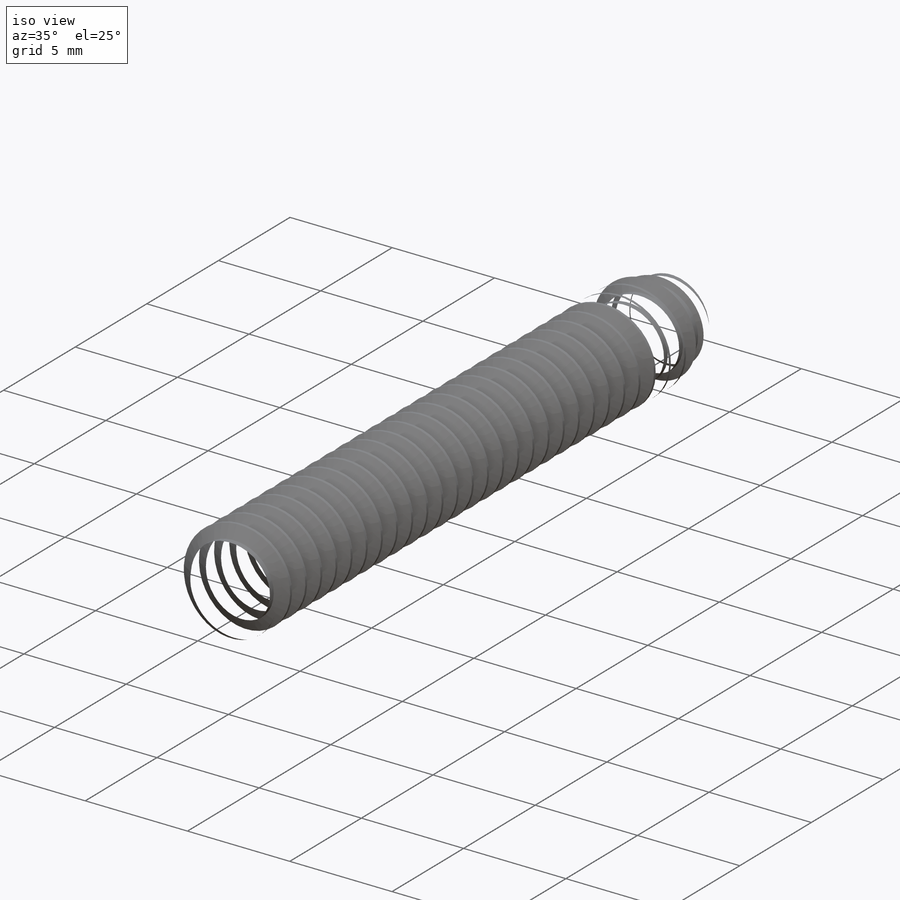
[diagram: iso view]
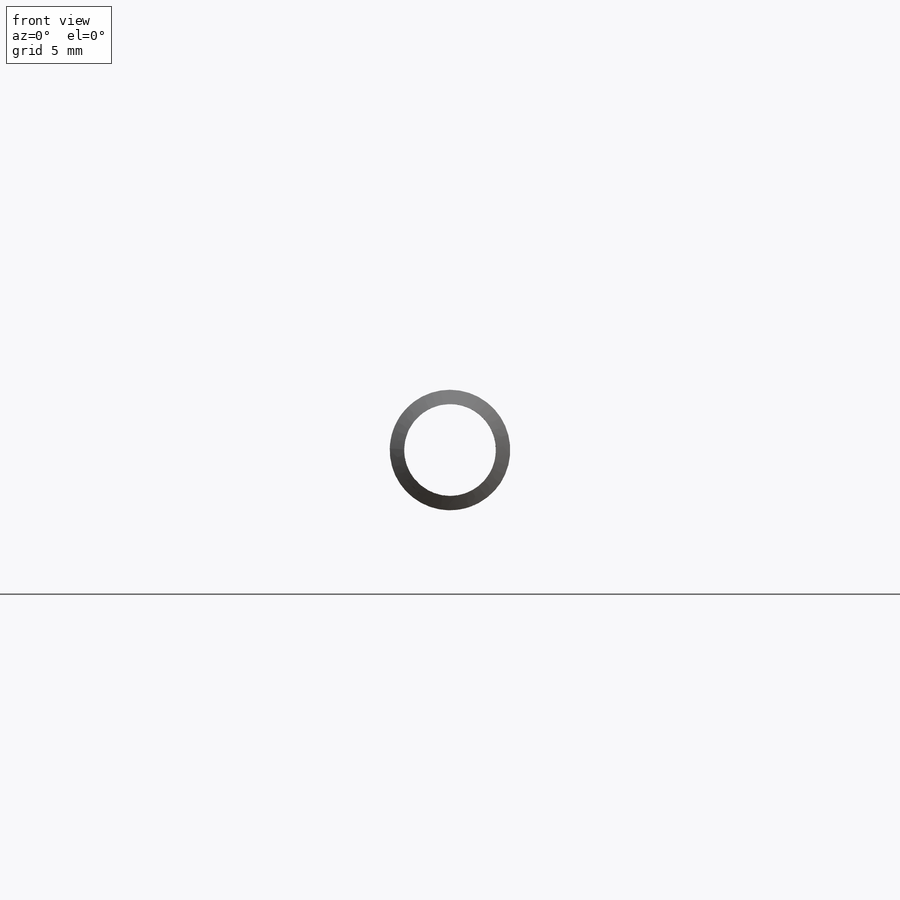
[diagram: front view]
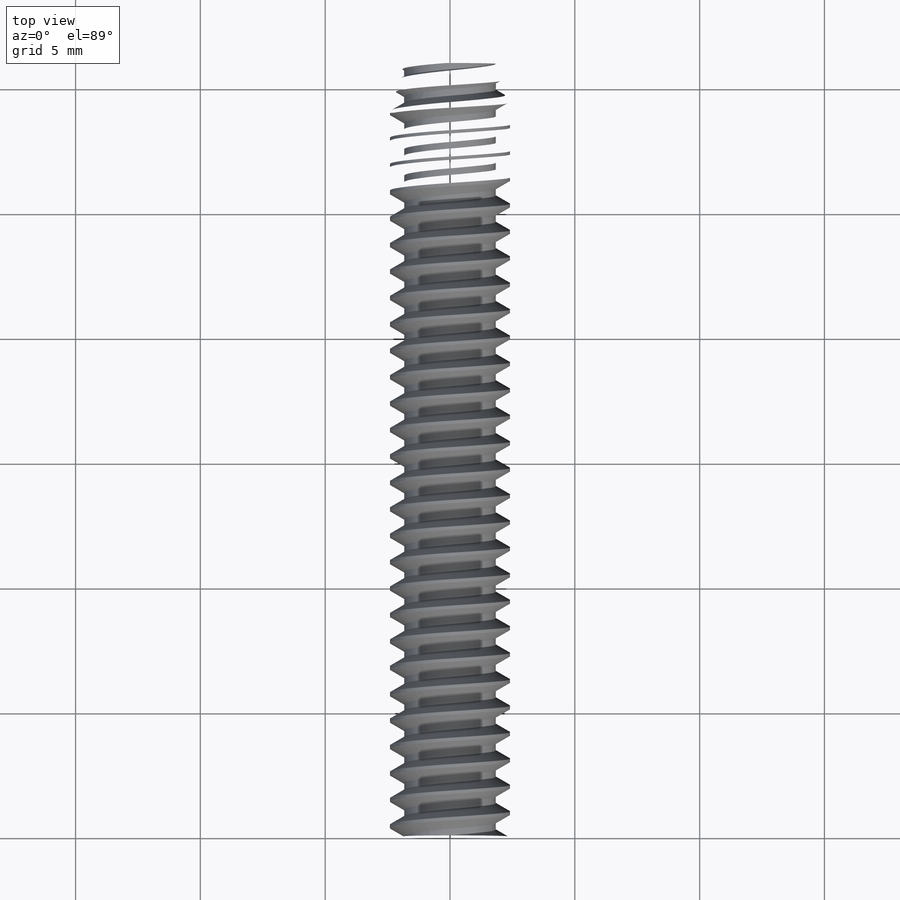
[diagram: top view]
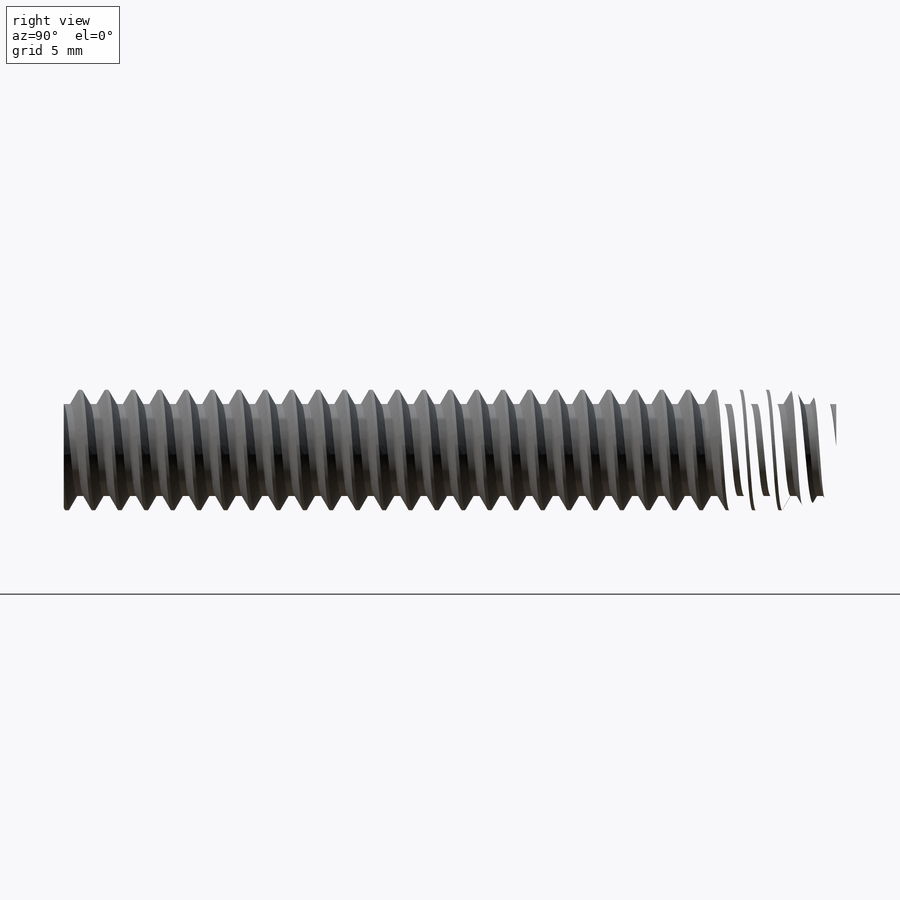
[diagram: right view]
SOLIDWORKS PART (.sldprt)
format: sldprt  version: not decoded by parser v0  size: 837,632 bytes
history: native  units: mm
features: sketch x8, extrude x2, cut_revolve x2, material x1, plane x1, helix x1, revolve x1, sweep x1, pattern_linear x1, cut_extrude x1 (+13 scaffold rows collapsed)
feature tree (32):
  scaffold x13  (default folders/planes/origin — collapsed)
  material  "Material <not specified>"
  sketch  "Sketch1"  dims[Washer OD=8.3312mm Head Dia=7.9375mm Hex=6.35mm]
  extrude  "Extrude3"  Depth=3.8354mm Head Ht=3.8354mm
  sketch  "Sketch11"  dims[c1.D1=0.254mm c1.D2=~1.642533mm c1.D3=~1.947333mm c2.D2=~1.66218mm c3.D2=5.0deg c3.D1=~3.294374mm c4.D1=100.0deg c5.D1=0.254mm c5.D2=~0.357143mm c5.D3=2.5mm c6.D1=2.5mm c7.D1=41.0deg c8.D1=~1.515533mm c8.D2=0.254mm c8.D3=0.254mm c8.D4=0.254mm c9.D1=~1.105142mm c10.D1=~142.256092deg c11.D1=~1.105142mm c12.D1=25.0deg c12.D2=~0.252445mm]
  cut_revolve  "Cut-Revolve3"  Angle=360deg
  sketch  "Sketch14"  dims[c1.D1=~0.564716mm c2.D1=60.0deg c2.Pitch=~1.058333mm c2.D3=~0.264583mm c2.D4=~0.132292mm c2.D5=2.0701mm c2.Major Dia=4.13mm c2.Screw Dia=4.826mm c3.Screw Dia=4.826mm c3.D2=0.0254mm]
  plane  "Plane2"
  sketch  "Sketch15"
  helix  "Helix/Spiral1"  Pitch=1.5875mm
  sketch  "Sketch16"  dims[Body Length=31.75mm]
  revolve  "Revolve1"  Angle=360deg
  sweep  "Sweep1"
  pattern_linear  "LPattern3"  Count1=29 Count2=2 Spacing1=1.058333mm Spacing2=1.058333mm
  sketch  "Sketch13"  dims[c1.D1=~1.645991mm c2.D1=25.0deg c2.D2=2.8448mm c3.D2=2.8448mm c4.D2=4.1656mm c4.D3=38.1mm c4.D1=0.127mm c5.D2=~1.58056mm c6.D2=45.0deg c7.D2=~3.84166mm c8.D2=22.5deg c8.D3=2.54mm c8.Point Dia=3.2131mm c8.Point Lg=2.7813mm]
  cut_revolve  "Cut-Revolve4"  Angle=360deg
  sketch  "Sketch12"  dims[c1.Cross Recess Dia=4.064mm c1.Phillips Dia=9.525mm c1.Cross recess Width=0.7112mm c1.Phillips Width=0.7112mm c2.Phillips Width=1.905mm c2.D1=~0.992188mm]
  cut_extrude  "Cut-Extrude1"  Depth=0.76708mm
  sketch  "Sketch17"  dims[Washer OD=10.5156mm]
  extrude  "Extrude4"  Depth=0.76708mm
decode coverage: 15 of 17 modeling features carry decoded parameters
note: ~ marks probable driven/reference dimensions
note: suppression state not decoded; provenance and decode notes live in map.json
